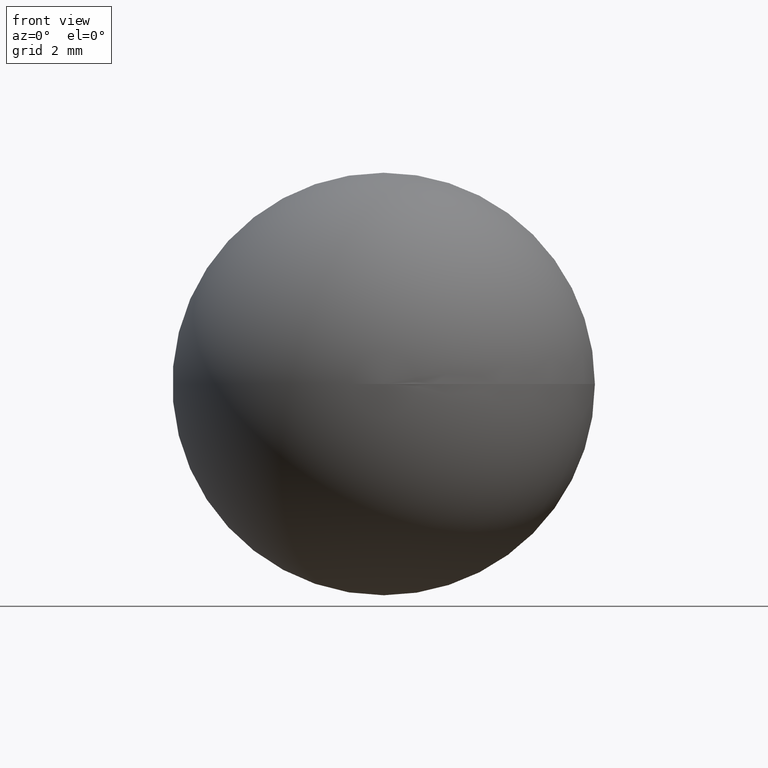
[diagram: clean part render]
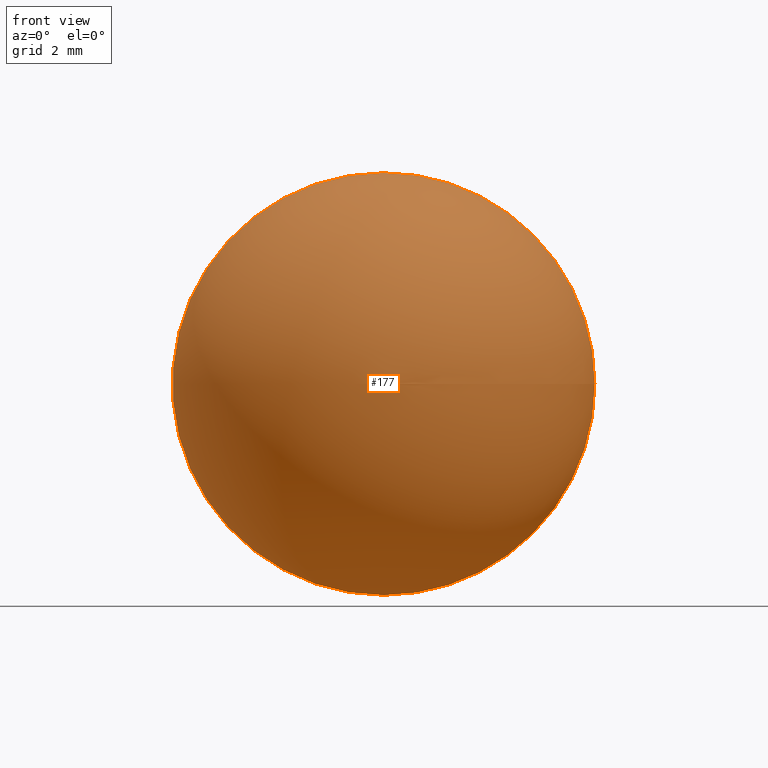
[diagram: same view with one face highlighted and labeled with its STEP entity id]
A machine part, front view. The second image highlights one B-rep face of the part: STEP entity #177.
In plain terms, the highlighted spherical surface has radius 3.5 mm.
Its self-contained STEP definition (entity closure, byte-faithful):
#17 = DIRECTION ( 'NONE',  ( 1.224646799147353200E-016, -1.000000000000000000, 0.0000000000000000000 ) ) ;
#23 = DIRECTION ( 'NONE',  ( 1.000000000000000000, 0.0000000000000000000, 0.0000000000000000000 ) ) ;
#33 = DIRECTION ( 'NONE',  ( 0.0000000000000000000, 0.0000000000000000000, 1.000000000000000000 ) ) ;
#38 = ORIENTED_EDGE ( 'NONE', *, *, #64, .F. ) ;
#50 = DIRECTION ( 'NONE',  ( 1.000000000000000000, 1.224646799147353200E-016, 0.0000000000000000000 ) ) ;
#53 = AXIS2_PLACEMENT_3D ( 'NONE', #82, #131, #33 ) ;
#64 = EDGE_CURVE ( 'NONE', #129, #120, #108, .T. ) ;
#67 = CARTESIAN_POINT ( 'NONE',  ( 2.143131898507868300E-016, 0.0000000000000000000, -3.500000000000000000 ) ) ;
#82 = CARTESIAN_POINT ( 'NONE',  ( 0.0000000000000000000, 0.0000000000000000000, 0.0000000000000000000 ) ) ;
#85 = CARTESIAN_POINT ( 'NONE',  ( 2.143131898507868300E-016, 0.0000000000000000000, 3.500000000000000000 ) ) ;
#89 = EDGE_LOOP ( 'NONE', ( #38, #97 ) ) ;
#97 = ORIENTED_EDGE ( 'NONE', *, *, #119, .T. ) ;
#108 = CIRCLE ( 'NONE', #53, 3.500000000000000000 ) ;
#112 = SPHERICAL_SURFACE ( 'NONE', #162, 3.500000000000000000 ) ;
#119 = EDGE_CURVE ( 'NONE', #129, #120, #193, .T. ) ;
#120 = VERTEX_POINT ( 'NONE', #67 ) ;
#129 = VERTEX_POINT ( 'NONE', #85 ) ;
#131 = DIRECTION ( 'NONE',  ( 0.0000000000000000000, 1.000000000000000000, -0.0000000000000000000 ) ) ;
#145 = FACE_OUTER_BOUND ( 'NONE', #89, .T. ) ;
#162 = AXIS2_PLACEMENT_3D ( 'NONE', #174, #171, #23 ) ;
#171 = DIRECTION ( 'NONE',  ( 0.0000000000000000000, -1.000000000000000000, -0.0000000000000000000 ) ) ;
#174 = CARTESIAN_POINT ( 'NONE',  ( 0.0000000000000000000, 0.0000000000000000000, 0.0000000000000000000 ) ) ;
#177 = ADVANCED_FACE ( 'NONE', ( #145 ), #112, .T. ) ;
#187 = AXIS2_PLACEMENT_3D ( 'NONE', #189, #17, #50 ) ;
#189 = CARTESIAN_POINT ( 'NONE',  ( 0.0000000000000000000, 0.0000000000000000000, 0.0000000000000000000 ) ) ;
#193 = CIRCLE ( 'NONE', #187, 3.500000000000000000 ) ;